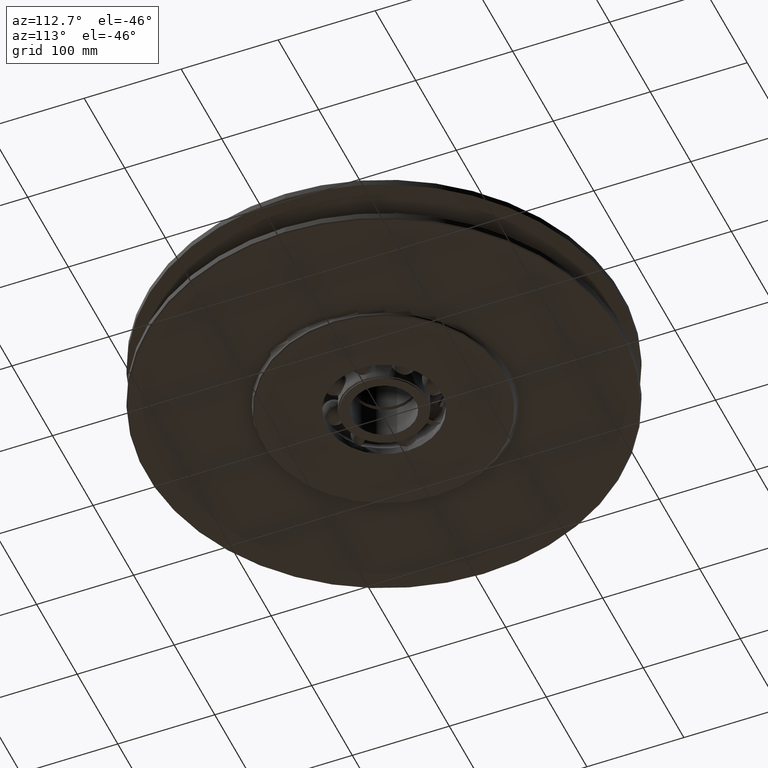
[diagram: clean part render]
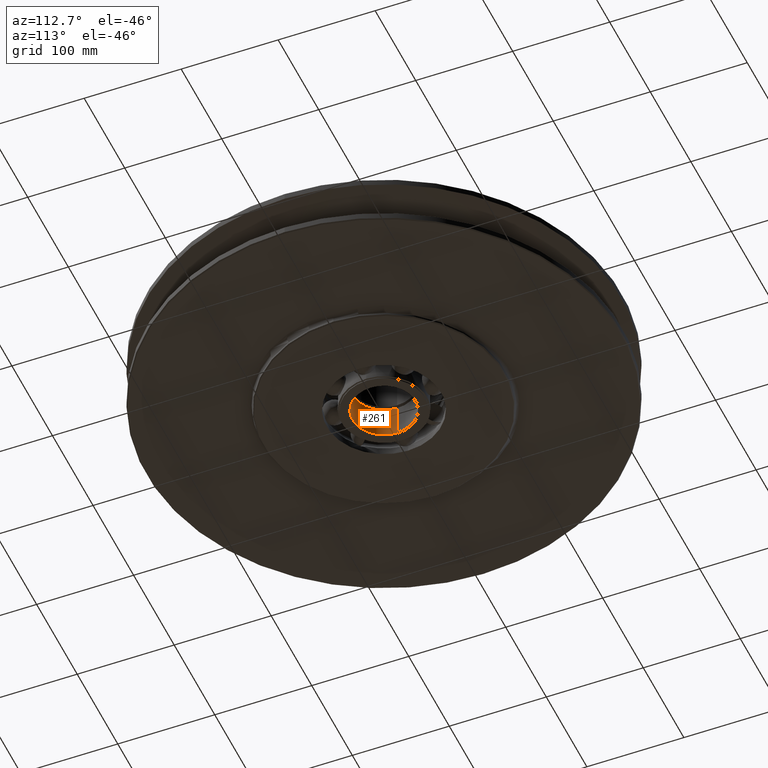
[diagram: same view with one face highlighted and labeled with its STEP entity id]
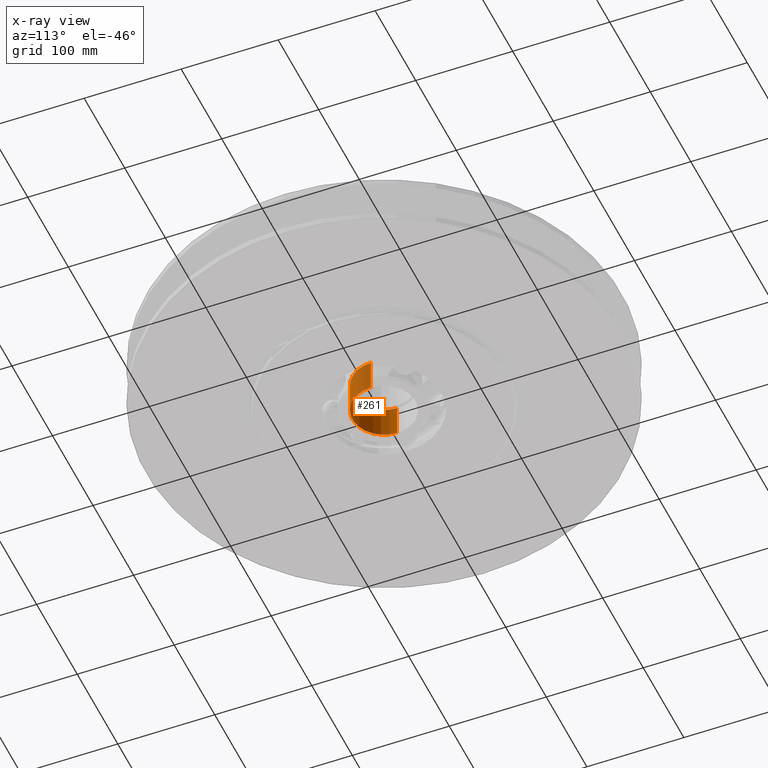
[diagram: x-ray of the same camera — body ghosted, the highlighted face saturated]
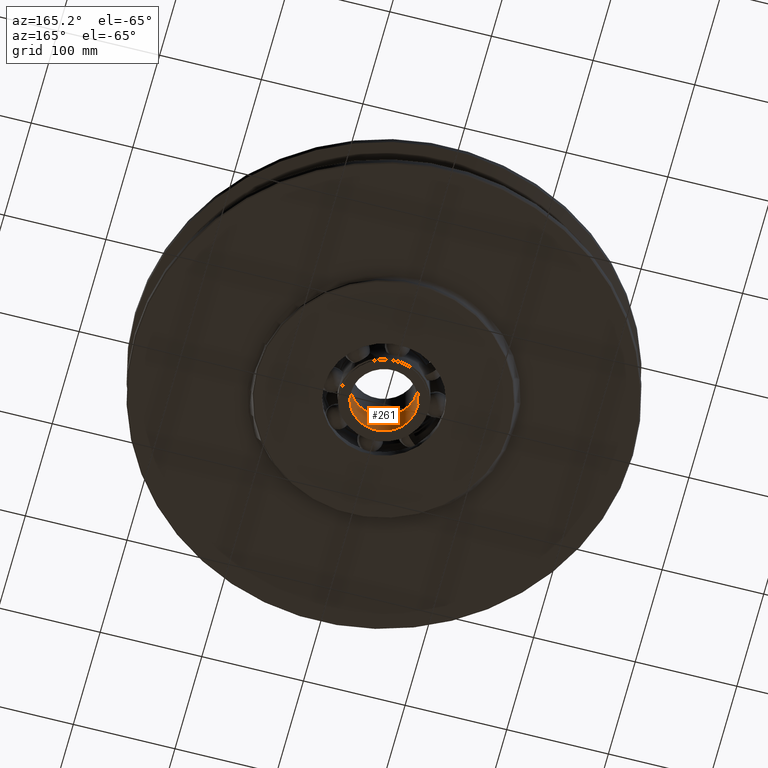
[diagram: same view with one face highlighted and labeled with its STEP entity id]
A machine part, auxiliary view. The second image highlights one B-rep face of the part: STEP entity #261.
The next image is the same camera in x-ray: the body ghosted, the highlighted face saturated — about 0% of this face is hidden behind the body in this view.
A second angle (auxiliary view) of the same face is appended — the face is thin or edge-on in the first view.
In plain terms, the highlighted cylindrical surface (edge-blend (fillet) strip) has radius 32.5 mm, axis along (0, 0, -1).
Its self-contained STEP definition (entity closure, byte-faithful):
#261=ADVANCED_FACE('',(#592),#593,.F.);
#592=FACE_OUTER_BOUND('',#1002,.T.);
#593=CYLINDRICAL_SURFACE('',#1003,32.5);
#1002=EDGE_LOOP('',(#1827,#1828,#1829,#1830));
#1003=AXIS2_PLACEMENT_3D('',#1831,#1832,#1833);
#1827=ORIENTED_EDGE('',*,*,#2933,.F.);
#1828=ORIENTED_EDGE('',*,*,#2934,.F.);
#1829=ORIENTED_EDGE('',*,*,#2935,.F.);
#1830=ORIENTED_EDGE('',*,*,#2936,.F.);
#1831=CARTESIAN_POINT('',(0.0,0.0,-18.5));
#1832=DIRECTION('',(0.0,0.0,-1.0));
#1833=DIRECTION('',(1.0,0.0,0.0));
#2933=EDGE_CURVE('',#3722,#3723,#3724,.T.);
#2934=EDGE_CURVE('',#3725,#3722,#3726,.T.);
#2935=EDGE_CURVE('',#3727,#3725,#3728,.T.);
#2936=EDGE_CURVE('',#3723,#3727,#3729,.T.);
#3722=VERTEX_POINT('',#7827);
#3723=VERTEX_POINT('',#7828);
#3724=LINE('',#7829,#7830);
#3725=VERTEX_POINT('',#7831);
#3726=CIRCLE('',#7832,32.5);
#3727=VERTEX_POINT('',#7833);
#3728=LINE('',#7834,#7835);
#3729=CIRCLE('',#7836,32.5);
#7827=CARTESIAN_POINT('',(32.5,0.0,-36.0));
#7828=CARTESIAN_POINT('',(32.5,0.0,-2.0));
#7829=CARTESIAN_POINT('',(32.5,3.9801020972289E-015,-18.5));
#7830=VECTOR('',#9596,1.0);
#7831=CARTESIAN_POINT('',(-32.5,-3.9801020972289E-015,-36.0));
#7832=AXIS2_PLACEMENT_3D('',#9597,#9598,#9599);
#7833=CARTESIAN_POINT('',(-32.5,-3.9801020972289E-015,-2.0));
#7834=CARTESIAN_POINT('',(-32.5,-3.9801020972289E-015,-18.5));
#7835=VECTOR('',#9600,1.0);
#7836=AXIS2_PLACEMENT_3D('',#9601,#9602,#9603);
#9596=DIRECTION('',(-0.0,-0.0,1.0));
#9597=CARTESIAN_POINT('',(0.0,0.0,-36.0));
#9598=DIRECTION('',(0.0,-0.0,1.0));
#9599=DIRECTION('',(1.0,0.0,0.0));
#9600=DIRECTION('',(-0.0,-0.0,-1.0));
#9601=CARTESIAN_POINT('',(0.0,0.0,-2.0));
#9602=DIRECTION('',(0.0,0.0,-1.0));
#9603=DIRECTION('',(1.0,0.0,0.0));